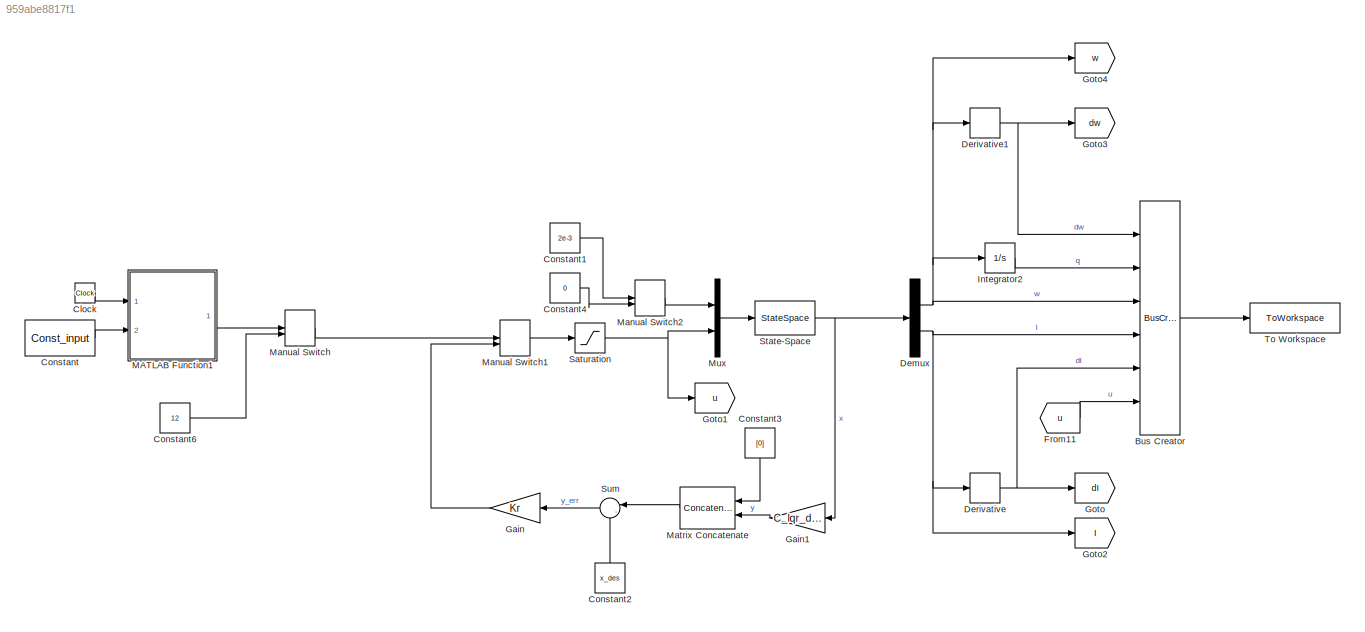
MODEL slx_959abe8817f1
KIND model
CONFIG AbsTol = auto
CONFIG EnableMultiTasking = off
CONFIG FixedStep = 0.001
CONFIG MaxStep = auto
CONFIG MinStep = auto
CONFIG RelTol = 1e-3
CONFIG SampleTimeConstraint = Unconstrained
CONFIG SolverName = ode23t
CONFIG StartTime = 0.0
CONFIG StopTime = 10
BLOCK [BusCreator] Bus Creator
  DisplayOption = bar
  InheritFromInputs = on
  Inputs = 6
  Ports = [6, 1]
BLOCK [Clock] Clock
BLOCK [Constant] Constant
  Value = Const_input
BLOCK [Constant] Constant1
  Value = 2e-3
BLOCK [Constant] Constant2
  NameLocation = right
  Value = x_des
BLOCK [Constant] Constant3
  NameLocation = left
  Value = [0]
BLOCK [Constant] Constant4
  Value = 0
BLOCK [Constant] Constant6
  Value = 12
BLOCK [Demux] Demux
  Outputs = 2
  Ports = [1, 2]
BLOCK [Derivative] Derivative
BLOCK [Derivative] Derivative1
BLOCK [From] From11
  GotoTag = u
BLOCK [Gain] Gain
  Gain = Kr
  Multiplication = Matrix(K*u)
  NameLocation = top
BLOCK [Gain] Gain1
  Gain = C_lqr_diff
  Multiplication = Matrix(K*u)
  NameLocation = top
BLOCK [Goto] Goto
  GotoTag = dI
BLOCK [Goto] Goto1
  GotoTag = u
BLOCK [Goto] Goto2
  GotoTag = I
BLOCK [Goto] Goto3
  GotoTag = dw
BLOCK [Goto] Goto4
  GotoTag = w
BLOCK [Integrator] Integrator2
  Ports = [1, 1]
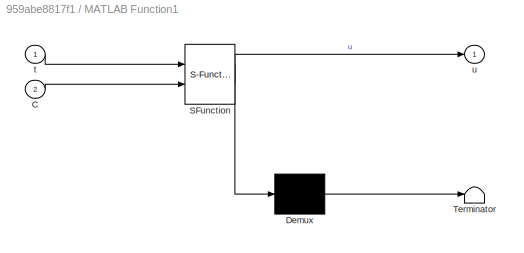
BLOCK [SubSystem] MATLAB Function1
  ErrorFcn = Stateflow.Translate.translate
  PermitHierarchicalResolution = ExplicitOnly
  Ports = [2, 1]
  RequestExecContextInheritance = off
  SFBlockType = MATLAB Function
  TreatAsAtomicUnit = on
BLOCK [Demux] MATLAB Function1/ Demux 
  Outputs = 1
  Ports = [1, 1]
BLOCK [S-Function] MATLAB Function1/ SFunction 
  EnableBusSupport = on
  FunctionName = sf_sfun
  PortCounts = [2 2]
  Ports = [2, 2]
  SFcnIsStateOwnerBlock = off
  SFunctionDeploymentMode = off
  Tag = Stateflow S-Function 2
BLOCK [Terminator] MATLAB Function1/ Terminator 
BLOCK [Inport] MATLAB Function1/C
  Port = 2
BLOCK [Inport] MATLAB Function1/t
BLOCK [Outport] MATLAB Function1/u
BLOCK [ManualSwitch] Manual Switch
  CurrentSetting = 0
BLOCK [ManualSwitch] Manual Switch1
  CurrentSetting = 0
BLOCK [ManualSwitch] Manual Switch2
  CurrentSetting = 0
BLOCK [Concatenate] Matrix Concatenate
  ConcatenateDimension = 2
  NameLocation = top
  Ports = [2, 1]
BLOCK [Mux] Mux
  DisplayOption = bar
  Inputs = 2
  Ports = [2, 1]
BLOCK [Saturate] Saturation
  LowerLimit = -15
  UpperLimit = 15
BLOCK [StateSpace] State-Space
  A = Am
  B = Bm
  C = Cm
  D = Dm
  InitialCondition = [0;0]
  Ports = [1, 1]
BLOCK [Sum] Sum
  Inputs = |-+
  NameLocation = top
  Ports = [2, 1]
BLOCK [ToWorkspace] To Workspace
  FixptAsFi = on
  MaxDataPoints = inf
  Ports = [1]
  SampleTime = -1
  SaveFormat = Timeseries
  VariableName = simout
LINE Bus Creator:1 -> To Workspace:1
LINE Clock:1 -> MATLAB Function1:1
LINE Constant1:1 -> Manual Switch2:1
LINE Constant2:1 -> Sum:2
LINE Constant3:1 -> Matrix Concatenate:1
LINE Constant4:1 -> Manual Switch2:2
LINE Constant6:1 -> Manual Switch:2
LINE Constant:1 -> MATLAB Function1:2
NET Demux:1 -> Bus Creator:3, Derivative1:1, Goto4:1, Integrator2:1
NET Demux:2 -> Bus Creator:4, Derivative:1, Goto2:1
NET Derivative1:1 -> Bus Creator:1, Goto3:1
NET Derivative:1 -> Bus Creator:5, Goto:1
LINE From11:1 -> Bus Creator:6
LINE Gain1:1 -> Matrix Concatenate:2
LINE Gain:1 -> Manual Switch1:2
LINE Integrator2:1 -> Bus Creator:2
LINE MATLAB Function1:1 -> Manual Switch:1
LINE Manual Switch1:1 -> Saturation:1
LINE Manual Switch2:1 -> Mux:1
LINE Manual Switch:1 -> Manual Switch1:1
LINE Matrix Concatenate:1 -> Sum:1
LINE Mux:1 -> State-Space:1
NET Saturation:1 -> Goto1:1, Mux:2
NET State-Space:1 -> Demux:1, Gain1:1
LINE Sum:1 -> Gain:1
note: NET lines group one-source signal fan-out (src -> all destinations, sorted); 1:1 wires keep LINE
CHART MATLAB Function1 states=1 transitions=1
  STATE_LABEL 'eML_blk_kernel()'
  STATE_LABEL 'SCRIPT:\nfunction u = fcn(t, C)\n\n% w = 4;\n% A = 6;\n% B = 6;\n% fi = 3.1415;\n% u = A * cos(w * t + fi) + B;\n\nw = C(3);\nA = C(1);\nB = C(2);\nfi = C(4);\nu = A * cos(w * t + fi) + B;\n'
CHART  states=0 transitions=0
